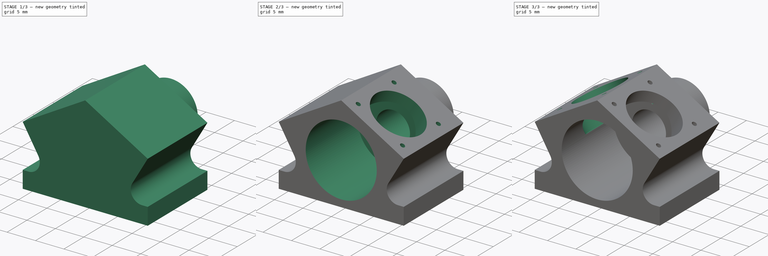
[diagram: build sequence overview — one tinted view per stage of 3, left to right]
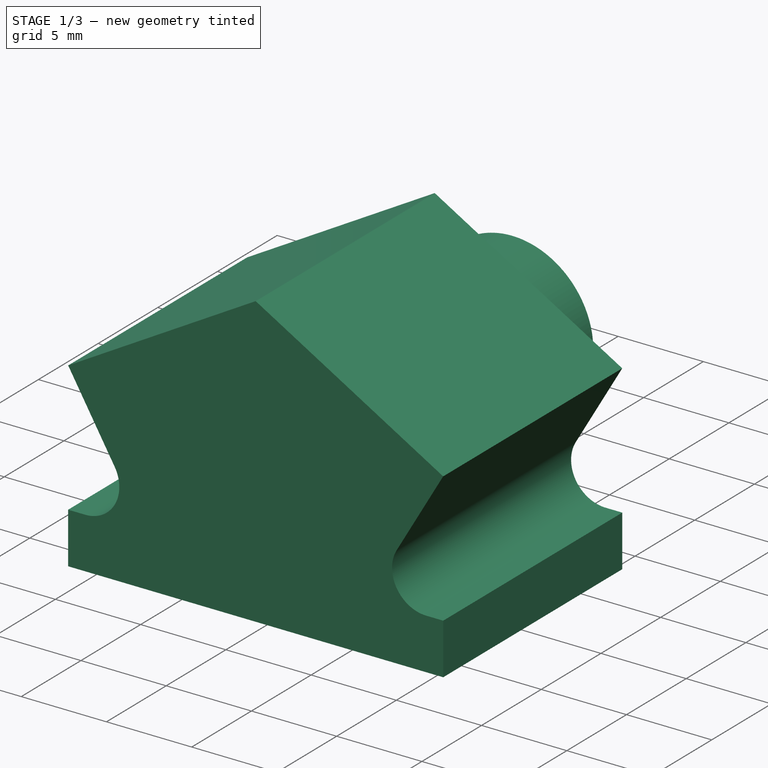
[diagram: stage 1 of 3 — iso view after this stage's code; geometry added in this stage tinted green]
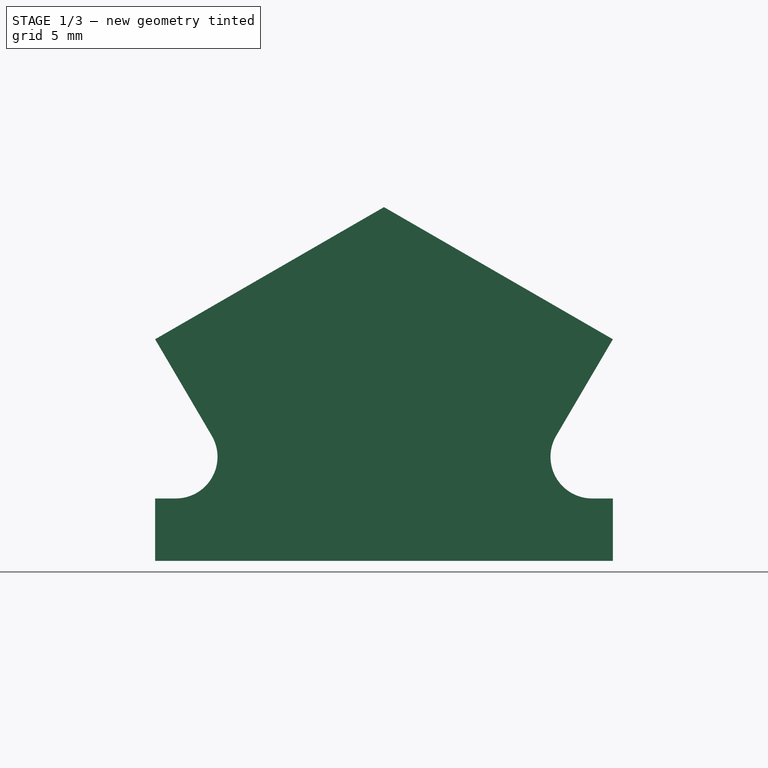
[diagram: stage 1 of 3 — front view after this stage's code; geometry added in this stage tinted green]
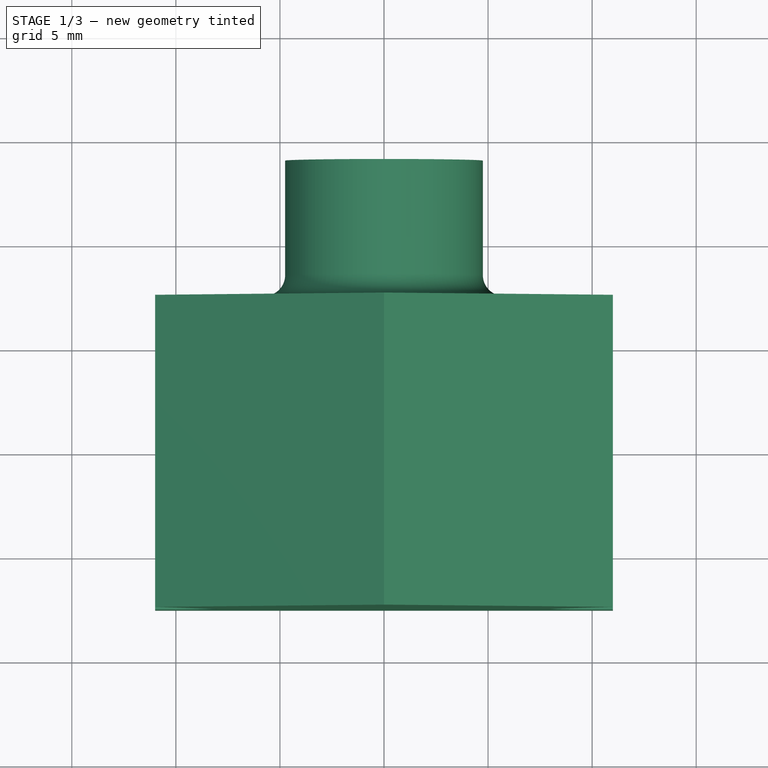
[diagram: stage 1 of 3 — top view after this stage's code; geometry added in this stage tinted green]
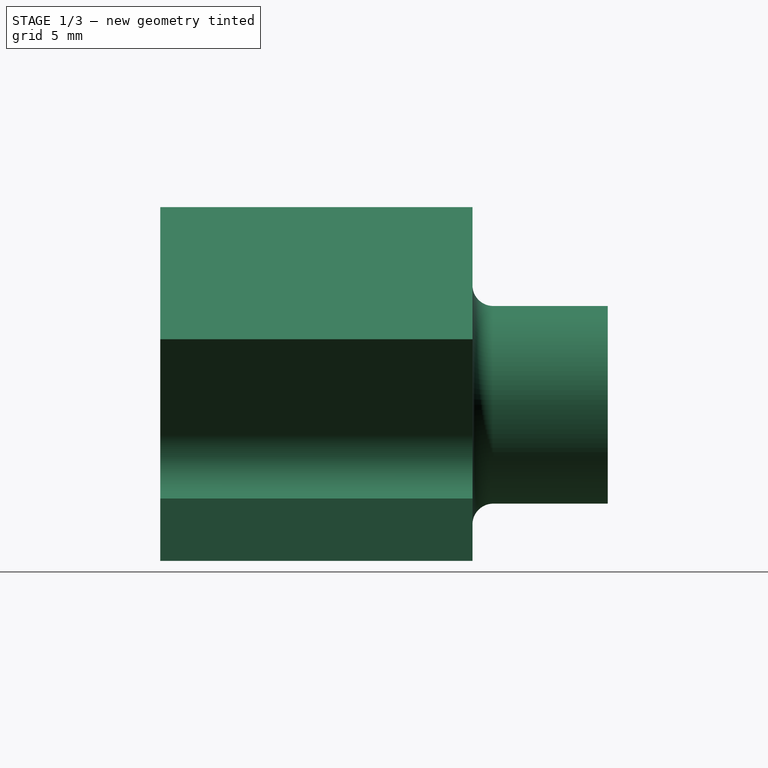
[diagram: stage 1 of 3 — right view after this stage's code; geometry added in this stage tinted green]
FCSTD DOCUMENT  (FreeCAD 0.18R4 (GitTag))
Label: Mini_CylinderBlock
License: All rights reserved
LicenseURL: http://en.wikipedia.org/wiki/All_rights_reserved
objects: Sketcher::SketchObject×7, PartDesign::Pocket×5, PartDesign::Pad×1, PartDesign::Revolution×1, PartDesign::Body×1
note: 22 computed .brp shape members not serialized (recipe doc carries the construction recipe); baked Part::Feature solids carry a one-line shape summary decoded from their .brp

FEATURE [Sketcher::SketchObject] Sketch
  MapMode = 5
  Placement = pos=(0,0,0) rot=(1,0,0;1.5708rad)
  Support = -> [XZ_Plane]
  sketch-geometry (11):
    g0: LineSegment StartX=-11 StartY=-7.5 StartZ=0 EndX=11 EndY=-7.5 EndZ=0
    g1: LineSegment StartX=11 StartY=-7.5 StartZ=0 EndX=11 EndY=-4.5 EndZ=0
    g2: LineSegment StartX=11 StartY=-4.5 StartZ=0 EndX=10 EndY=-4.5 EndZ=0
    g3: LineSegment StartX=8.27538 StartY=-1.48723 StartZ=0 EndX=10.9985 EndY=3.15 EndZ=0
    g4: LineSegment StartX=10.9985 StartY=3.15 StartZ=0 EndX=0 EndY=9.5 EndZ=0
    g5: LineSegment StartX=0 StartY=9.5 StartZ=0 EndX=-10.9985 EndY=3.15 EndZ=0
    g6: LineSegment StartX=-10.9985 StartY=3.15 StartZ=0 EndX=-8.27538 EndY=-1.48724 EndZ=0
    g7: LineSegment StartX=-10 StartY=-4.5 StartZ=0 EndX=-11 EndY=-4.5 EndZ=0
    g8: LineSegment StartX=-11 StartY=-4.5 StartZ=0 EndX=-11 EndY=-7.5 EndZ=0
    g9: ArcOfCircle CenterX=10 CenterY=-2.5 CenterZ=0 NormalX=0 NormalY=0 NormalZ=1 AngleXU=0 Radius=2 StartAngle=2.61061 EndAngle=4.7124
    g10: ArcOfCircle CenterX=-10 CenterY=-2.5 CenterZ=0 NormalX=0 NormalY=0 NormalZ=1 AngleXU=0 Radius=2 StartAngle=4.71239 EndAngle=6.81416
  constraints (32):
    c: Coincident(g0,g1)
    c: Coincident(g1,g2)
    c: Coincident(g3,g4)
    c: Coincident(g4,g5)
    c: Coincident(g5,g6)
    c: Coincident(g7,g8)
    c: Coincident(g8,g0)
    c: Vertical(g1)
    c: Horizontal(g7)
    c: Symmetric(g7,g1,g-2)
    c: Symmetric(g0,g0,g-2)
    c: Symmetric(g5,g3,g-2)
    c: PointOnObject(g4,g-2)
    c: Distance(g0) = 22
    c: Distance(g1) = 3
    c: Distance(g5) = 12.7
    c: DistanceY(g0,g4) = 17
    c: Radius(g9) = 2
    c: Tangent(g9,g3)
    c: Tangent(g9,g2)
    c: Angle(g-1,g5) = 0.523599
    c: DistanceX(g9,g1) = 1
    c: Coincident(g3,g9)
    c: Coincident(g2,g9)
    c: Parallel(g-1,g2)
    c: Radius(g10) = 2
    c: DistanceX(g7,g10) = 1
    c: Tangent(g10,g6)
    c: Tangent(g10,g7)
    c: Coincident(g7,g10)
    c: Coincident(g6,g10)
    c: DistanceY(g0,g-1) = 7.5
FEATURE [PartDesign::Pad] Pad  label="Block"
  Length = 15
  Length2 = 100
  Midplane = true
  Placement = pos=(0,0,0) rot=(1,0,0;1.5708rad)
  Profile = -> Sketch
  Type = 0
FEATURE [Sketcher::SketchObject] Sketch001
  MapMode = 5
  Support = -> [XY_Plane]
  sketch-geometry (5):
    g0: LineSegment StartX=0 StartY=14 StartZ=0 EndX=0 EndY=7.5 EndZ=0
    g1: LineSegment StartX=0 StartY=7.5 StartZ=0 EndX=5.75 EndY=7.5 EndZ=0
    g2: LineSegment StartX=4.75 StartY=8.5 StartZ=0 EndX=4.75 EndY=14 EndZ=0
    g3: LineSegment StartX=4.75 StartY=14 StartZ=0 EndX=0 EndY=14 EndZ=0
    g4: ArcOfCircle CenterX=5.75 CenterY=8.5 CenterZ=0 NormalX=0 NormalY=0 NormalZ=1 AngleXU=0 Radius=1 StartAngle=3.14159 EndAngle=4.71239
  constraints (15):
    c: Coincident(g0,g1)
    c: Coincident(g2,g3)
    c: Coincident(g3,g0)
    c: Vertical(g0)
    c: Vertical(g2)
    c: Horizontal(g3)
    c: Horizontal(g1)
    c: DistanceY(g0,g0) = 6.5
    c: PointOnObject(g0,g-2)
    c: Horizontal(g4,g4)
    c: Radius(g4) = 1
    c: DistanceX(g3,g3) = 4.75
    c: Tangent(g1,g4) = -1.5708
    c: Coincident(g2,g4)
    c: DistanceY(g-1,g1) = 7.5
FEATURE [PartDesign::Revolution] Revolution
  Angle = 360
  Axis = (0,1,0)
  Base = (0,0,0)
  BaseFeature = -> Pad
  Placement = pos=(0,0,0) rot=(1,0,0;1.5708rad)
  Profile = -> Sketch001
  ReferenceAxis = -> Sketch001 [V_Axis]
  Reversed = true
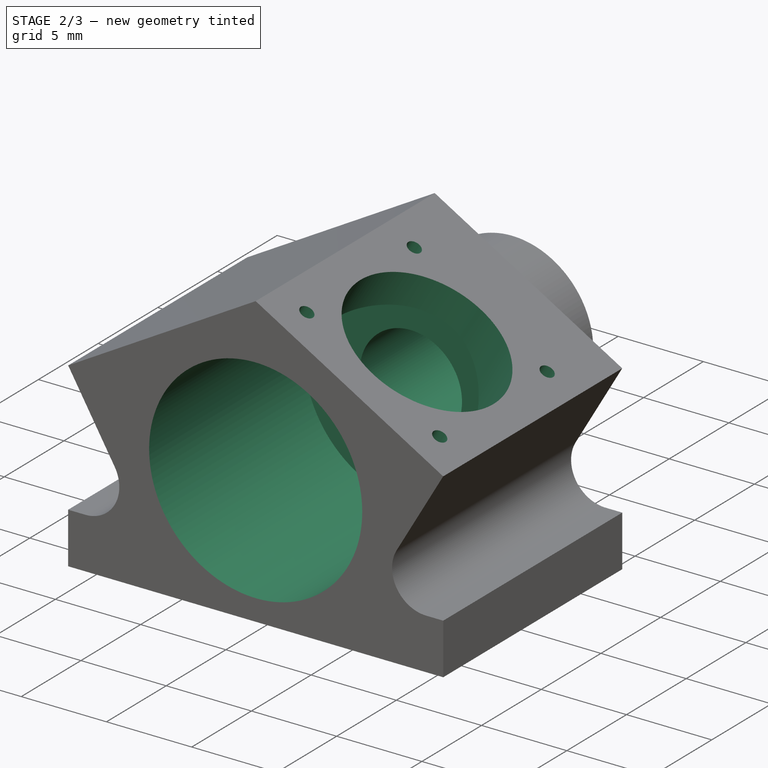
[diagram: stage 2 of 3 — iso view after this stage's code; geometry added in this stage tinted green]
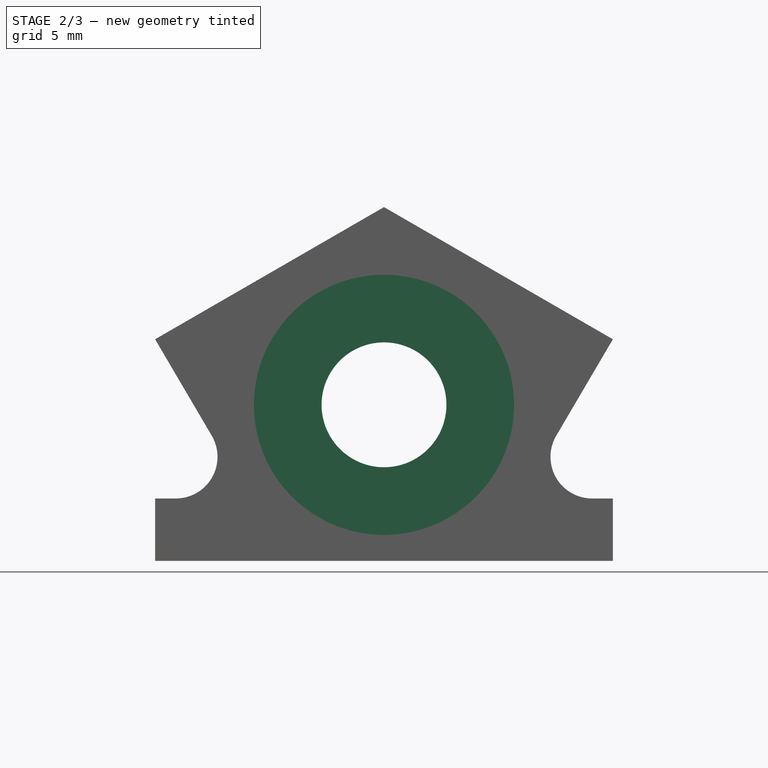
[diagram: stage 2 of 3 — front view after this stage's code; geometry added in this stage tinted green]
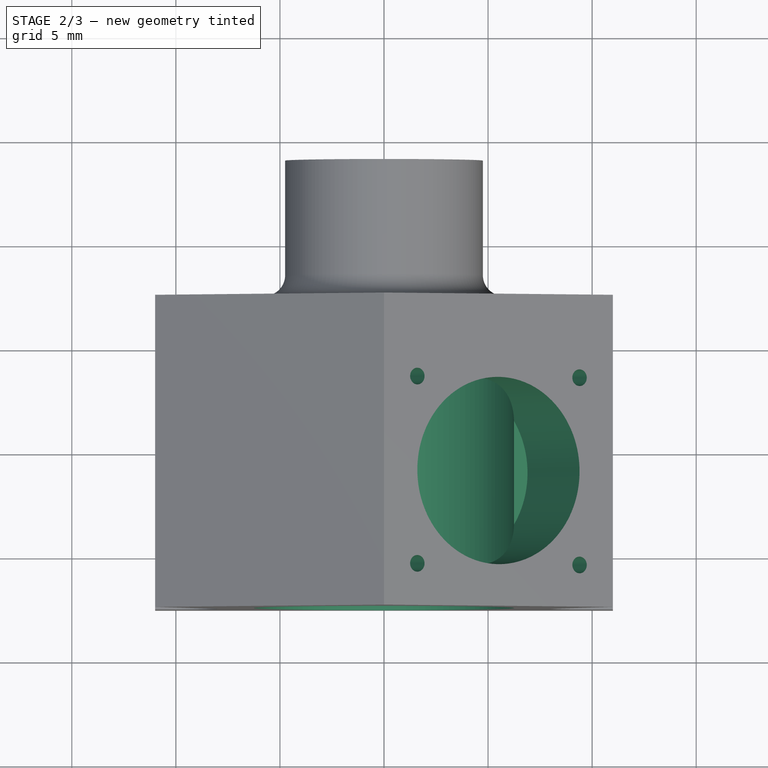
[diagram: stage 2 of 3 — top view after this stage's code; geometry added in this stage tinted green]
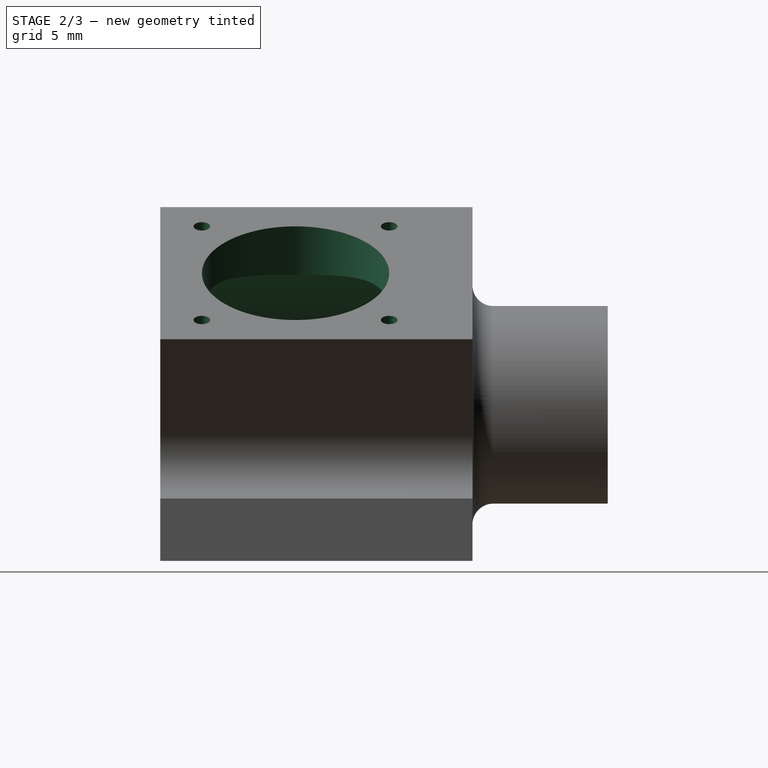
[diagram: stage 2 of 3 — right view after this stage's code; geometry added in this stage tinted green]
FEATURE [Sketcher::SketchObject] Sketch002
  MapMode = 5
  Placement = pos=(0,-7.5,3.3e-15) rot=(1,0,0;1.5708rad)
  Support = -> [Revolution]
  sketch-geometry (1):
    g0: Circle CenterX=0 CenterY=0 CenterZ=0 NormalX=0 NormalY=0 NormalZ=1 AngleXU=0 Radius=3
  constraints (2):
    c: Radius(g0) = 3
    c: Coincident(g0,g-1)
FEATURE [PartDesign::Pocket] Pocket
  BaseFeature = -> Revolution
  Length = 5
  Length2 = 100
  Placement = pos=(0,0,0) rot=(1,0,0;1.5708rad)
  Profile = -> Sketch002
  Type = 1
FEATURE [Sketcher::SketchObject] Sketch003
  MapMode = 5
  Placement = pos=(0,-7.5,4.1e-15) rot=(1,0,0;1.5708rad)
  Support = -> [Pocket]
  sketch-geometry (1):
    g0: Circle CenterX=0 CenterY=0 CenterZ=0 NormalX=0 NormalY=0 NormalZ=1 AngleXU=0 Radius=6.25
  constraints (2):
    c: Radius(g0) = 6.25
    c: Coincident(g0,g-1)
FEATURE [PartDesign::Pocket] Pocket001
  BaseFeature = -> Pocket
  Length = 13
  Length2 = 100
  Placement = pos=(0,0,0) rot=(1,0,0;1.5708rad)
  Profile = -> Sketch003
  Type = 0
FEATURE [Sketcher::SketchObject] CopySketch004
  Placement = pos=(5.49926,4.7e-15,6.325) rot=(0,1,0;0.523599rad)
  sketch-geometry (5):
    g0: Circle CenterX=0 CenterY=-1 CenterZ=0 NormalX=0 NormalY=0 NormalZ=1 AngleXU=0 Radius=4.5
    g1: Circle CenterX=-4.5 CenterY=3.5 CenterZ=0 NormalX=0 NormalY=0 NormalZ=1 AngleXU=0 Radius=0.4
    g2: Circle CenterX=4.5 CenterY=3.5 CenterZ=0 NormalX=0 NormalY=0 NormalZ=1 AngleXU=0 Radius=0.4
    g3: Circle CenterX=-4.5 CenterY=-5.5 CenterZ=0 NormalX=0 NormalY=0 NormalZ=1 AngleXU=0 Radius=0.4
    g4: Circle CenterX=4.5 CenterY=-5.5 CenterZ=0 NormalX=0 NormalY=0 NormalZ=1 AngleXU=0 Radius=0.4
  constraints (15):
    c: Radius(g0) = 4.5
    c: PointOnObject(g0,g-2)
    c: DistanceY(g0,g-1) = 1
    c: Radius(g1) = 0.4
    c: DistanceX(g1,g-1) = 4.5
    c: DistanceY(g-1,g1) = 3.5
    c: Equal(g1,g2) = 0.4
    c: DistanceY(g-1,g2) = 3.5
    c: DistanceX(g-1,g2) = 4.5
    c: Equal(g1,g3) = 0.4
    c: DistanceY(g3,g-1) = 5.5
    c: DistanceX(g3,g-1) = 4.5
    c: DistanceX(g-1,g4) = 4.5
    c: DistanceY(g4,g-1) = 5.5
    c: Radius(g4) = 0.4
FEATURE [PartDesign::Pocket] Pocket002
  BaseFeature = -> Pocket001
  Length = 5
  Length2 = 100
  Placement = pos=(0,0,0) rot=(1,0,0;1.5708rad)
  Profile = -> CopySketch004
  Type = 0
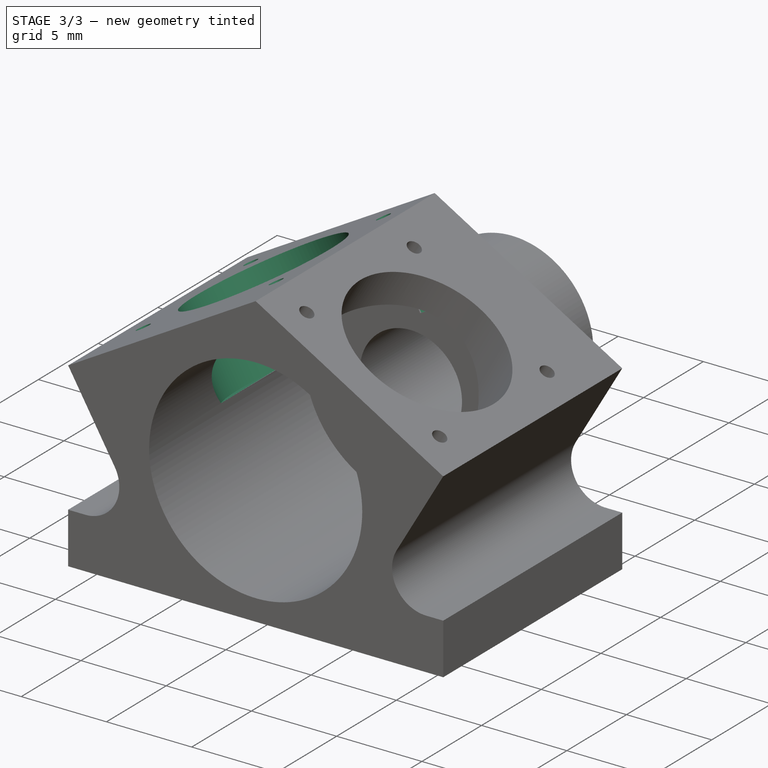
[diagram: stage 3 of 3 — iso view after this stage's code; geometry added in this stage tinted green]
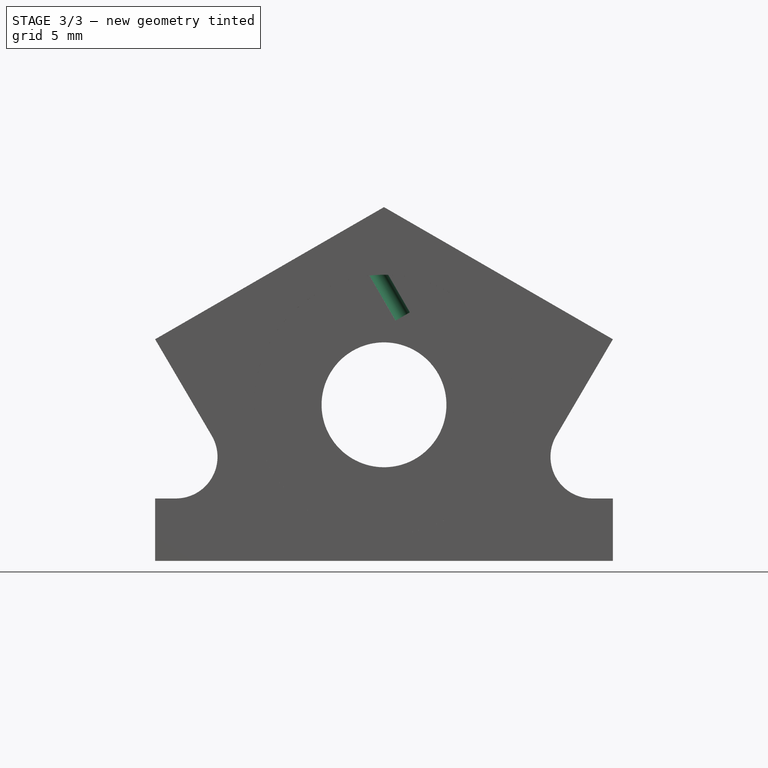
[diagram: stage 3 of 3 — front view after this stage's code; geometry added in this stage tinted green]
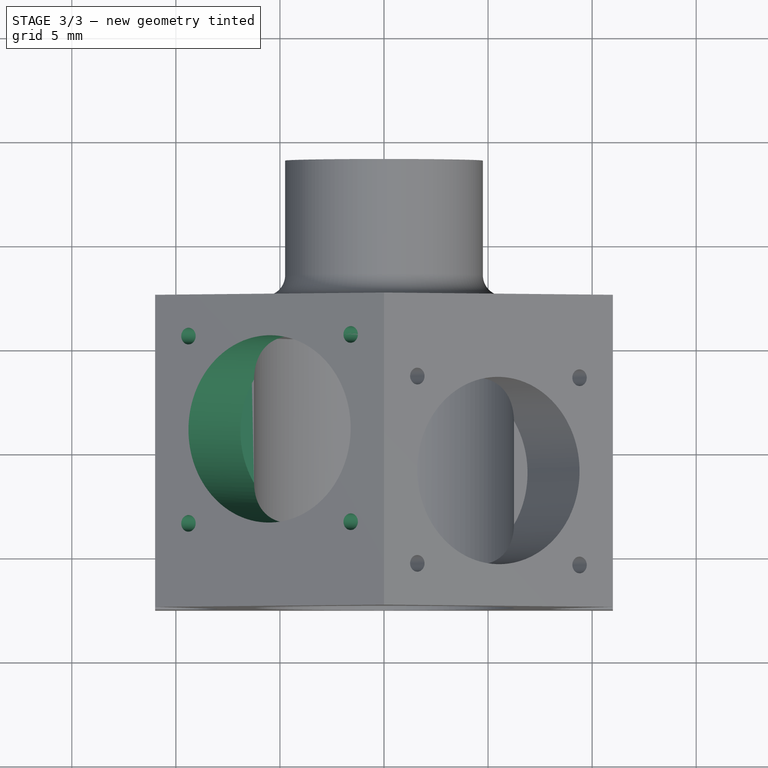
[diagram: stage 3 of 3 — top view after this stage's code; geometry added in this stage tinted green]
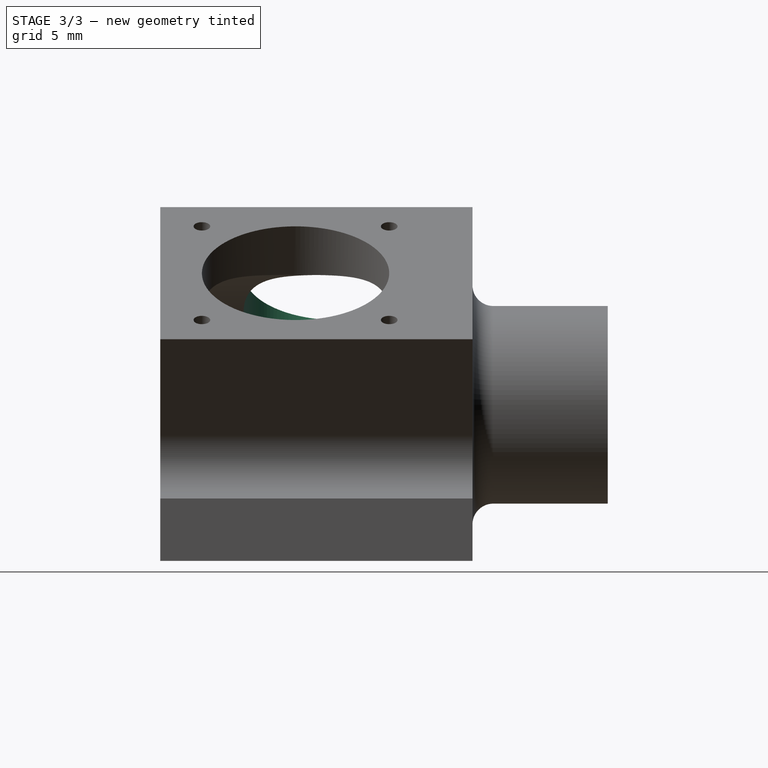
[diagram: stage 3 of 3 — right view after this stage's code; geometry added in this stage tinted green]
FEATURE [Sketcher::SketchObject] CopySketch004001  label="CopySketch005"
  Placement = pos=(-5.49926,6.8e-15,6.325) rot=(0,-1,0;0.523599rad)
  sketch-geometry (5):
    g0: Circle CenterX=0 CenterY=1 CenterZ=0 NormalX=0 NormalY=0 NormalZ=1 AngleXU=0 Radius=4.5
    g1: Circle CenterX=-4.5 CenterY=5.5 CenterZ=0 NormalX=0 NormalY=0 NormalZ=1 AngleXU=0 Radius=0.4
    g2: Circle CenterX=4.5 CenterY=5.5 CenterZ=0 NormalX=0 NormalY=0 NormalZ=1 AngleXU=0 Radius=0.4
    g3: Circle CenterX=4.5 CenterY=-3.5 CenterZ=0 NormalX=0 NormalY=0 NormalZ=1 AngleXU=0 Radius=0.4
    g4: Circle CenterX=-4.5 CenterY=-3.5 CenterZ=0 NormalX=0 NormalY=0 NormalZ=1 AngleXU=0 Radius=0.4
  constraints (13):
    c: Radius(g0) = 4.5
    c: PointOnObject(g0,g-2)
    c: DistanceY(g-1,g0) = 1
    c: Radius(g1) = 0.4
    c: DistanceX(g1,g-1) = 4.5
    c: DistanceY(g-1,g1) = 5.5
    c: Equal(g1,g2) = 0.4
    c: Symmetric(g3,g4,g-2)
    c: DistanceY(g3,g-1) = 3.5
    c: Radius(g3) = 0.4
    c: Radius(g4) = 0.4
    c: DistanceX(g-1,g3) = 4.5
    c: Symmetric(g2,g1,g-2)
FEATURE [PartDesign::Pocket] Pocket003
  BaseFeature = -> Pocket002
  Length = 5
  Length2 = 100
  Placement = pos=(0,0,0) rot=(1,0,0;1.5708rad)
  Profile = -> CopySketch004001
  Type = 0
FEATURE [Sketcher::SketchObject] Sketch004
  MapMode = 5
  Placement = pos=(0,-8.3e-15,-7.5) rot=(1,0,0;3.14159rad)
  Support = -> [Pocket003]
  sketch-geometry (2):
    g0: Circle CenterX=-6 CenterY=0 CenterZ=0 NormalX=0 NormalY=0 NormalZ=1 AngleXU=0 Radius=0.4
    g1: Circle CenterX=6 CenterY=0 CenterZ=0 NormalX=0 NormalY=0 NormalZ=1 AngleXU=0 Radius=0.4
  constraints (5):
    c: Radius(g0) = 0.4
    c: Equal(g0,g1) = 0.4
    c: Symmetric(g1,g0,g-2)
    c: PointOnObject(g1,g-1)
    c: DistanceX(g0,g-1) = 6
FEATURE [PartDesign::Pocket] Pocket004
  BaseFeature = -> Pocket003
  Length = 3
  Length2 = 100
  Placement = pos=(0,0,0) rot=(1,0,0;1.5708rad)
  Profile = -> Sketch004
  Type = 0
FEATURE [PartDesign::Body] Body
  Group = -> [Sketch,Pad,Sketch001,Revolution,Sketch002,Pocket,Sketch003,Pocket001,Pocket002,Pocket003,Sketch004,Pocket004]
  Origin = -> Origin
  Tip = -> Pocket004
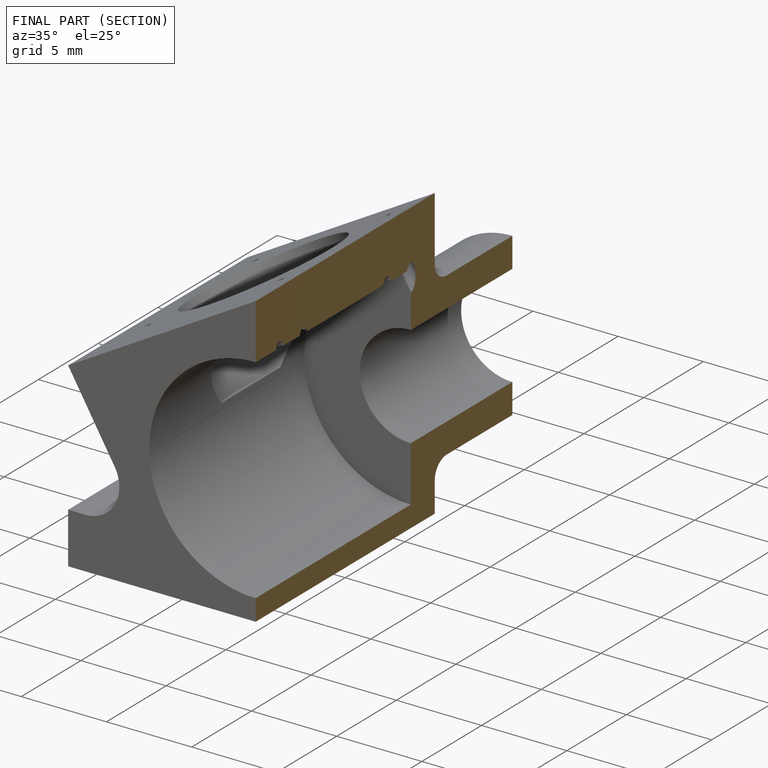
[diagram: finished part — half-section view (interior)]
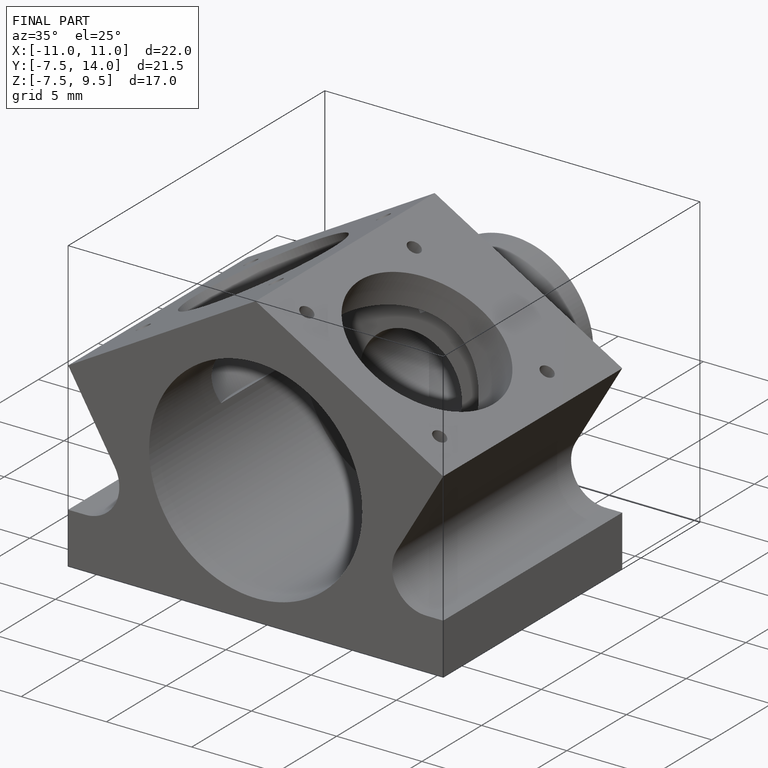
[diagram: finished part — iso view with bounding-box wireframe]
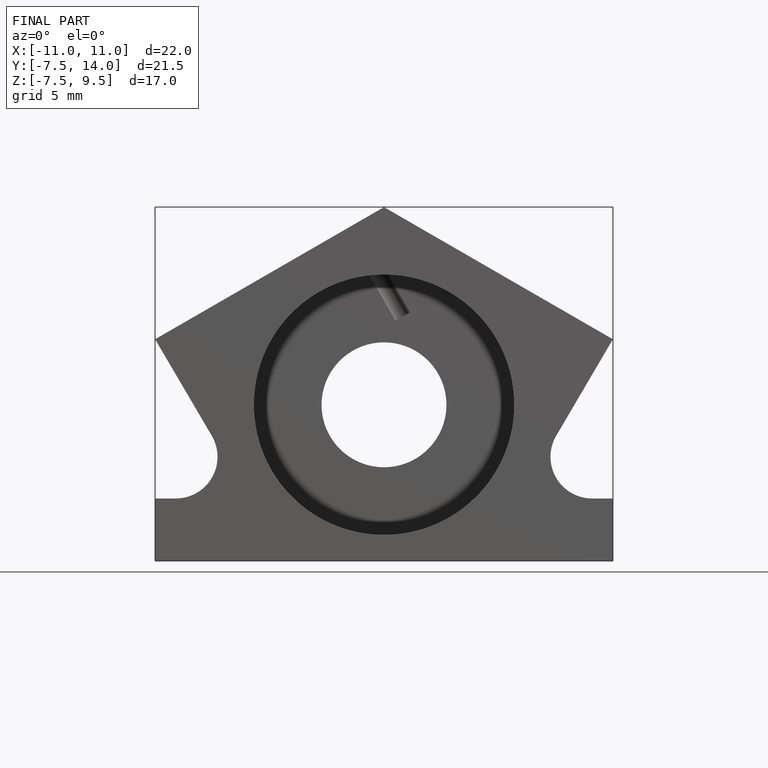
[diagram: finished part — front view with bounding-box wireframe]
